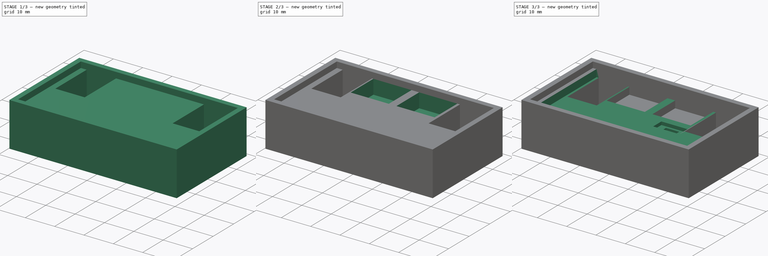
[diagram: build sequence overview — one tinted view per stage of 3, left to right]
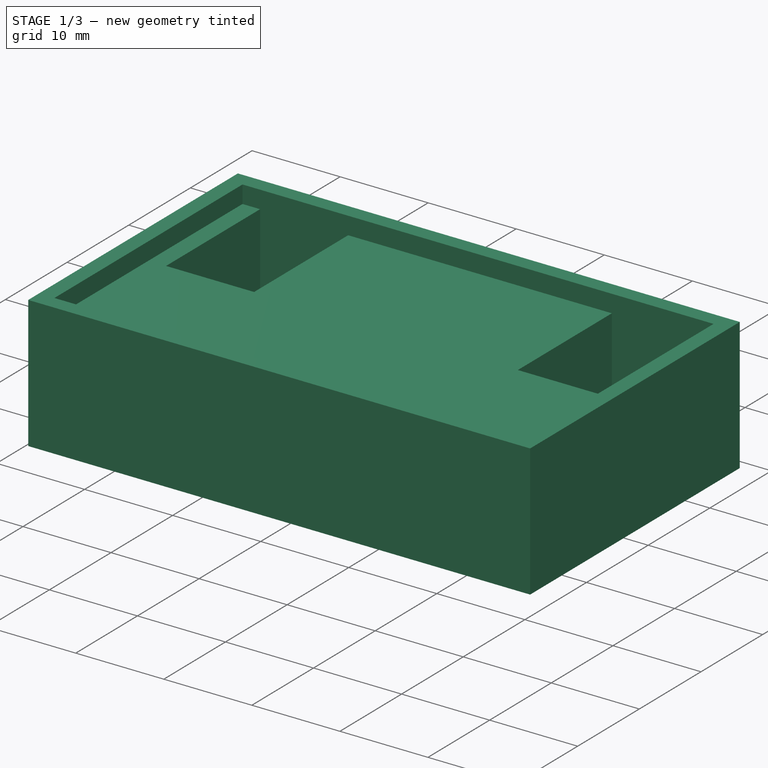
[diagram: stage 1 of 3 — iso view after this stage's code; geometry added in this stage tinted green]
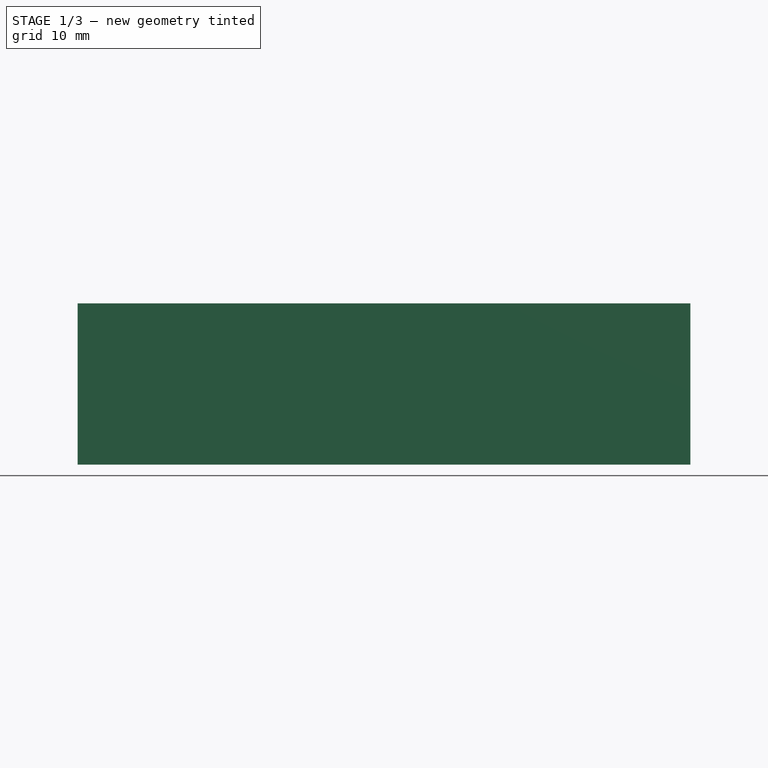
[diagram: stage 1 of 3 — front view after this stage's code; geometry added in this stage tinted green]
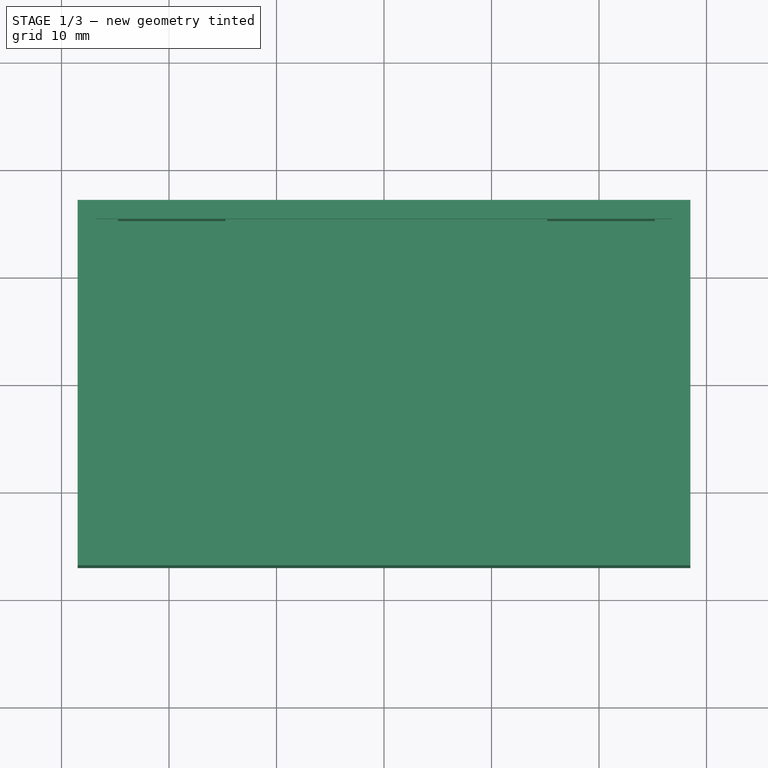
[diagram: stage 1 of 3 — top view after this stage's code; geometry added in this stage tinted green]
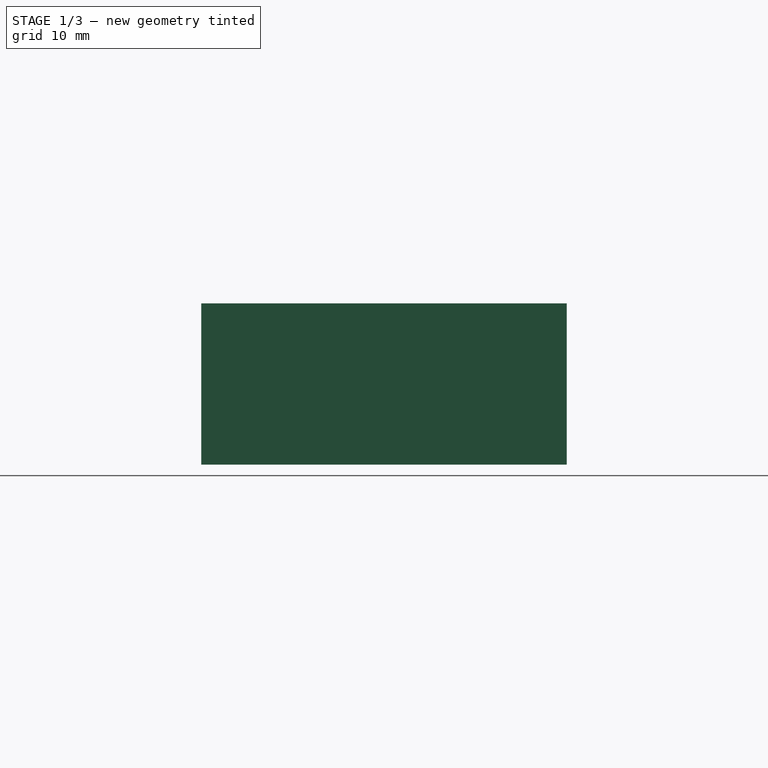
[diagram: stage 1 of 3 — right view after this stage's code; geometry added in this stage tinted green]
FCSTD DOCUMENT  (FreeCAD 1.0R39109 (Git))
Label: solderJig
License: All rights reserved
LicenseURL: https://en.wikipedia.org/wiki/All_rights_reserved
objects: Measure::MeasurePython×9, Sketcher::SketchObject×8, PartDesign::Pocket×7, PartDesign::Pad×1, App::DocumentObjectGroup×1, PartDesign::Body×1
note: 41 computed .brp shape members not serialized (recipe doc carries the construction recipe); baked Part::Feature solids carry a one-line shape summary decoded from their .brp

FEATURE [Sketcher::SketchObject] Sketch
  ArcFitTolerance = 1e-06
  AttachmentSupport = -> [XY_Plane]
  FullyConstrained = true
  MakeInternals = false
  MapMode = 5
  sketch-geometry (4):
    g0: LineSegment StartX=-28.5 StartY=17 StartZ=0 EndX=-28.5 EndY=-17 EndZ=0
    g1: LineSegment StartX=-28.5 StartY=-17 StartZ=0 EndX=28.5 EndY=-17 EndZ=0
    g2: LineSegment StartX=28.5 StartY=-17 StartZ=0 EndX=28.5 EndY=17 EndZ=0
    g3: LineSegment StartX=28.5 StartY=17 StartZ=0 EndX=-28.5 EndY=17 EndZ=0
  constraints (12):
    c: Coincident(g0,g1)
    c: Coincident(g1,g2)
    c: Coincident(g2,g3)
    c: Coincident(g3,g0)
    c: Vertical(g0)
    c: Vertical(g2)
    c: Horizontal(g1)
    c: Horizontal(g3)
    c: DistanceX(g3,g3) = 57
    c: DistanceY(g0,g0) = 34
    c: Distance(g-1,g3) = 17
    c: Distance(g0,g-2) = 28.5
FEATURE [PartDesign::Pad] Pad
  Direction = (0,0,1)
  Length = 15
  Length2 = 10
  Profile = -> Sketch
  ReferenceAxis = -> Sketch [N_Axis]
  Refine = true
  Suppressed = false
  Type = 0
FEATURE [Sketcher::SketchObject] Sketch001
  ArcFitTolerance = 1e-06
  AttachmentSupport = -> [Pad]
  FullyConstrained = true
  MakeInternals = false
  MapMode = 5
  Placement = pos=(0,0,15) rot=(0,0,1;0rad)
  sketch-geometry (4):
    g0: LineSegment StartX=-26.75 StartY=15.25 StartZ=0 EndX=-26.75 EndY=-15.25 EndZ=0
    g1: LineSegment StartX=-26.75 StartY=-15.25 StartZ=0 EndX=26.75 EndY=-15.25 EndZ=0
    g2: LineSegment StartX=26.75 StartY=-15.25 StartZ=0 EndX=26.75 EndY=15.25 EndZ=0
    g3: LineSegment StartX=26.75 StartY=15.25 StartZ=0 EndX=-26.75 EndY=15.25 EndZ=0
  constraints (12):
    c: Coincident(g0,g1)
    c: Coincident(g1,g2)
    c: Coincident(g2,g3)
    c: Coincident(g3,g0)
    c: Vertical(g0)
    c: Vertical(g2)
    c: Horizontal(g1)
    c: Horizontal(g3)
    c: DistanceX(g3,g3) = 53.5
    c: DistanceY(g0,g0) = 30.5
    c: Distance(g-1,g3) = 15.25
    c: Distance(g-2,g0) = 26.75
FEATURE [PartDesign::Pocket] Pocket
  BaseFeature = -> Pad
  Direction = (0,0,-1)
  Length = 2
  Length2 = 5
  Profile = -> Sketch001
  ReferenceAxis = -> Sketch001 [N_Axis]
  Refine = true
  Suppressed = false
  Type = 0
FEATURE [Sketcher::SketchObject] Sketch002
  ArcFitTolerance = 1e-06
  AttachmentSupport = -> [Pocket]
  FullyConstrained = true
  MakeInternals = false
  MapMode = 5
  Placement = pos=(0,0,13) rot=(0,0,1;0rad)
  sketch-geometry (8):
    g0: LineSegment StartX=-24.75 StartY=15.25 StartZ=0 EndX=-24.75 EndY=1.8e-15 EndZ=0
    g1: LineSegment StartX=-24.75 StartY=1.8e-15 StartZ=0 EndX=-14.75 EndY=1.8e-15 EndZ=0
    g2: LineSegment StartX=-14.75 StartY=1.8e-15 StartZ=0 EndX=-14.75 EndY=15.25 EndZ=0
    g3: LineSegment StartX=-14.75 StartY=15.25 StartZ=0 EndX=-24.75 EndY=15.25 EndZ=0
    g4: LineSegment StartX=15.2 StartY=15.25 StartZ=0 EndX=15.2 EndY=1.8e-15 EndZ=0
    g5: LineSegment StartX=15.2 StartY=1.8e-15 StartZ=0 EndX=25.2 EndY=1.8e-15 EndZ=0
    g6: LineSegment StartX=25.2 StartY=1.8e-15 StartZ=0 EndX=25.2 EndY=15.25 EndZ=0
    g7: LineSegment StartX=25.2 StartY=15.25 StartZ=0 EndX=15.2 EndY=15.25 EndZ=0
  constraints (24):
    c: Coincident(g0,g1)
    c: Coincident(g1,g2)
    c: Coincident(g2,g3)
    c: Coincident(g3,g0)
    c: Vertical(g0)
    c: Vertical(g2)
    c: Horizontal(g1)
    c: Horizontal(g3)
    c: DistanceX(g3,g3) = 10
    c: DistanceY(g2,g2) = 15.25
    c: Distance(g-1,g3) = 15.25
    c: Coincident(g4,g5)
    c: Coincident(g5,g6)
    c: Coincident(g6,g7)
    c: Coincident(g7,g4)
    c: Vertical(g4)
    c: Vertical(g6)
    c: Horizontal(g5)
    c: Horizontal(g7)
    c: DistanceY(g4,g4) = 15.25
    c: DistanceX(g5,g5) = 10
    c: Distance(g-1,g7) = 15.25
    c: Distance(g-2,g2) = 14.75
    c: Distance(g-2,g4) = 15.2
FEATURE [PartDesign::Pocket] Pocket001
  BaseFeature = -> Pocket
  Direction = (0,0,-1)
  Length = 10.7
  Length2 = 5
  Profile = -> Sketch002
  ReferenceAxis = -> Sketch002 [N_Axis]
  Refine = true
  Suppressed = false
  Type = 0
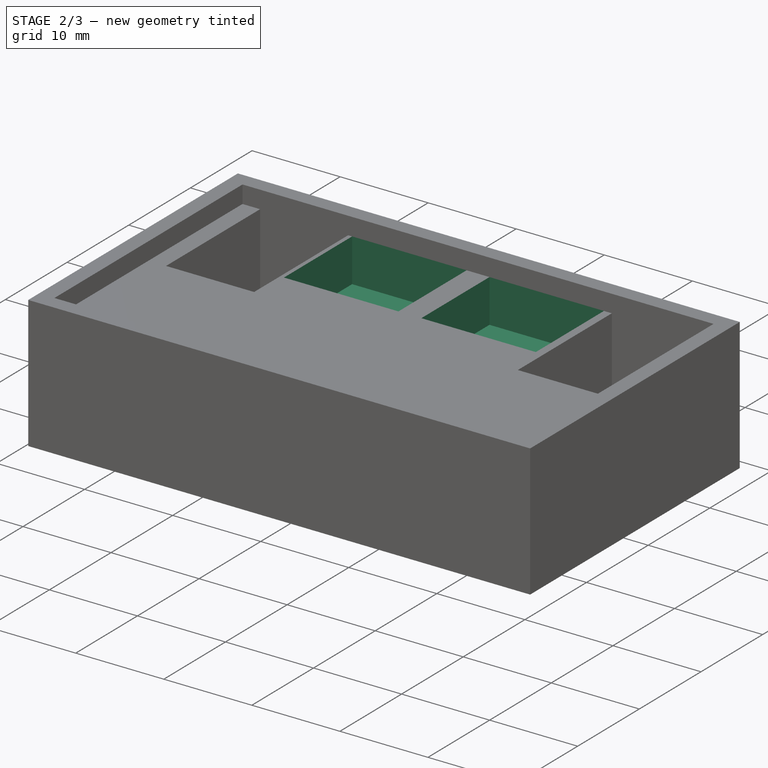
[diagram: stage 2 of 3 — iso view after this stage's code; geometry added in this stage tinted green]
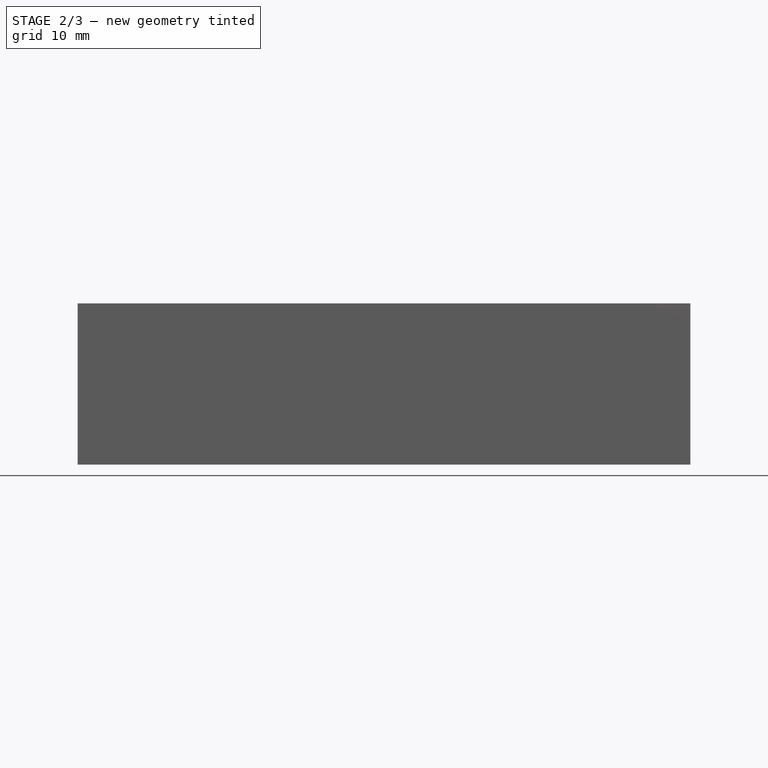
[diagram: stage 2 of 3 — front view after this stage's code; geometry added in this stage tinted green]
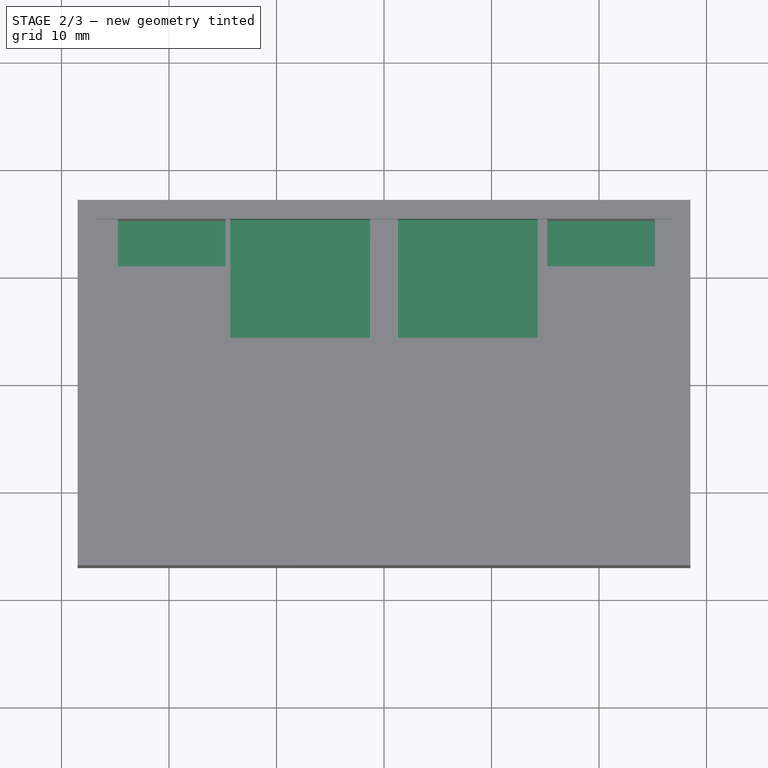
[diagram: stage 2 of 3 — top view after this stage's code; geometry added in this stage tinted green]
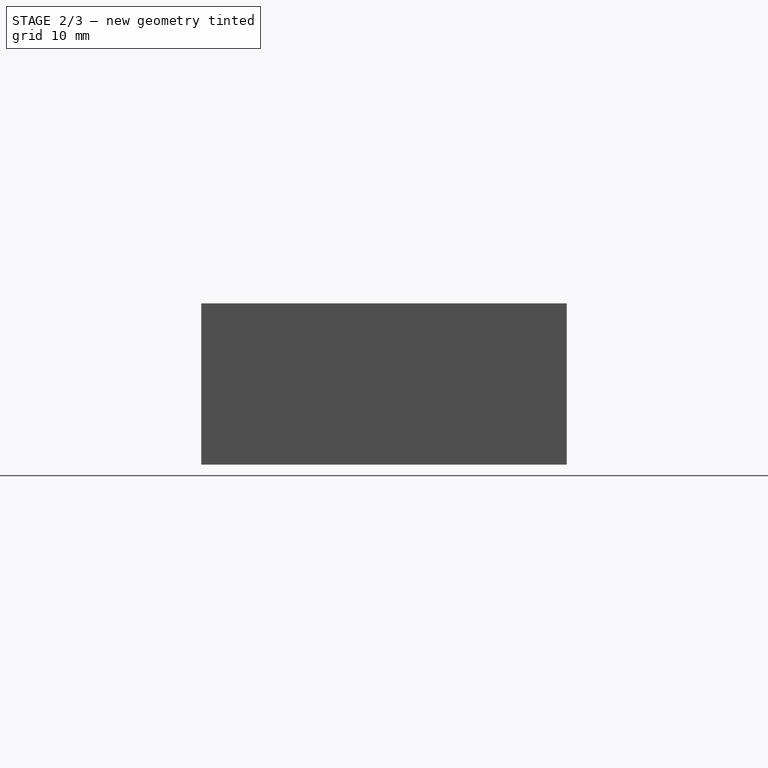
[diagram: stage 2 of 3 — right view after this stage's code; geometry added in this stage tinted green]
FEATURE [Sketcher::SketchObject] Sketch003
  ArcFitTolerance = 1e-06
  AttachmentSupport = -> [Pocket001]
  FullyConstrained = true
  MakeInternals = false
  MapMode = 5
  Placement = pos=(0,0,2.3) rot=(0,0,1;0rad)
  sketch-geometry (8):
    g0: LineSegment StartX=-24.75 StartY=11.05 StartZ=0 EndX=-14.75 EndY=11.05 EndZ=0
    g1: LineSegment StartX=-14.75 StartY=11.05 StartZ=0 EndX=-14.75 EndY=15.25 EndZ=0
    g2: LineSegment StartX=-14.75 StartY=15.25 StartZ=0 EndX=-24.75 EndY=15.25 EndZ=0
    g3: LineSegment StartX=-24.75 StartY=15.25 StartZ=0 EndX=-24.75 EndY=11.05 EndZ=0
    g4: LineSegment StartX=15.2 StartY=15.25 StartZ=0 EndX=15.2 EndY=11.05 EndZ=0
    g5: LineSegment StartX=15.2 StartY=11.05 StartZ=0 EndX=25.2 EndY=11.05 EndZ=0
    g6: LineSegment StartX=25.2 StartY=11.05 StartZ=0 EndX=25.2 EndY=15.25 EndZ=0
    g7: LineSegment StartX=25.2 StartY=15.25 StartZ=0 EndX=15.2 EndY=15.25 EndZ=0
  constraints (24):
    c: Coincident(g0,g1)
    c: Coincident(g1,g2)
    c: Coincident(g2,g3)
    c: Coincident(g3,g0)
    c: Horizontal(g0)
    c: Horizontal(g2)
    c: Vertical(g1)
    c: Vertical(g3)
    c: DistanceX(g0,g0) = 10
    c: DistanceY(g1,g1) = 4.2
    c: Distance(g-1,g0) = 11.05
    c: Coincident(g4,g5)
    c: Coincident(g5,g6)
    c: Coincident(g6,g7)
    c: Coincident(g7,g4)
    c: Vertical(g4)
    c: Vertical(g6)
    c: Horizontal(g5)
    c: Horizontal(g7)
    c: DistanceX(g5,g5) = 10
    c: Distance(g5,g7) = 4.2
    c: Distance(g-1,g5) = 11.05
    c: Distance(g-2,g1) = 14.75
    c: Distance(g-2,g4) = 15.2
FEATURE [PartDesign::Pocket] Pocket002
  BaseFeature = -> Pocket001
  Direction = (0,0,-1)
  Length = 0.45
  Length2 = 5
  Profile = -> Sketch003
  ReferenceAxis = -> Sketch003 [N_Axis]
  Refine = true
  Suppressed = false
  Type = 0
FEATURE [Sketcher::SketchObject] Sketch004
  ArcFitTolerance = 1e-06
  AttachmentSupport = -> [Pocket002]
  FullyConstrained = true
  MakeInternals = false
  MapMode = 5
  Placement = pos=(0,0,13) rot=(0,0,1;0rad)
  sketch-geometry (8):
    g0: LineSegment StartX=-14.3 StartY=15.25 StartZ=0 EndX=-14.3 EndY=4.2 EndZ=0
    g1: LineSegment StartX=-14.3 StartY=4.2 StartZ=0 EndX=-1.3 EndY=4.2 EndZ=0
    g2: LineSegment StartX=-1.3 StartY=4.2 StartZ=0 EndX=-1.3 EndY=15.25 EndZ=0
    g3: LineSegment StartX=-1.3 StartY=15.25 StartZ=0 EndX=-14.3 EndY=15.25 EndZ=0
    g4: LineSegment StartX=1.3 StartY=15.25 StartZ=0 EndX=1.3 EndY=4.2 EndZ=0
    g5: LineSegment StartX=1.3 StartY=4.2 StartZ=0 EndX=14.3 EndY=4.2 EndZ=0
    g6: LineSegment StartX=14.3 StartY=4.2 StartZ=0 EndX=14.3 EndY=15.25 EndZ=0
    g7: LineSegment StartX=14.3 StartY=15.25 StartZ=0 EndX=1.3 EndY=15.25 EndZ=0
  constraints (24):
    c: Coincident(g0,g1)
    c: Coincident(g1,g2)
    c: Coincident(g2,g3)
    c: Coincident(g3,g0)
    c: Vertical(g0)
    c: Vertical(g2)
    c: Horizontal(g1)
    c: Horizontal(g3)
    c: DistanceX(g3,g3) = 13
    c: Distance(g-1,g1) = 4.2
    c: Distance(g-1,g3) = 15.25
    c: Distance(g-1,g2) = 1.3
    c: Coincident(g4,g5)
    c: Coincident(g5,g6)
    c: Coincident(g6,g7)
    c: Coincident(g7,g4)
    c: Vertical(g4)
    c: Vertical(g6)
    c: Horizontal(g5)
    c: Horizontal(g7)
    c: DistanceX(g5,g5) = 13
    c: Distance(g-1,g5) = 4.2
    c: Distance(g-1,g7) = 15.25
    c: Distance(g-2,g4) = 1.3
FEATURE [PartDesign::Pocket] Pocket003
  BaseFeature = -> Pocket002
  Direction = (0,0,-1)
  Length = 4.9
  Length2 = 5
  Profile = -> Sketch004
  ReferenceAxis = -> Sketch004 [N_Axis]
  Refine = true
  Suppressed = false
  Type = 0
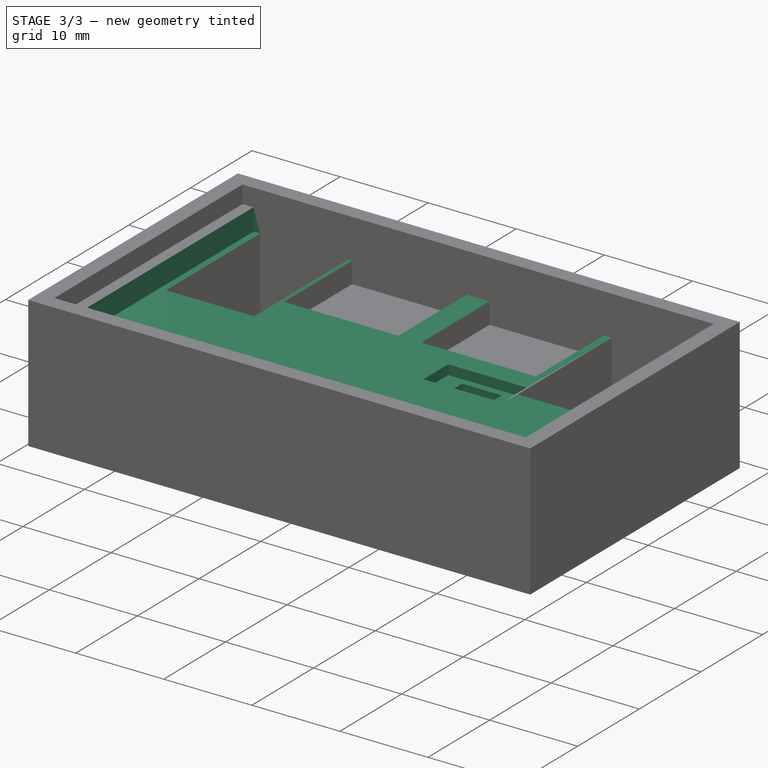
[diagram: stage 3 of 3 — iso view after this stage's code; geometry added in this stage tinted green]
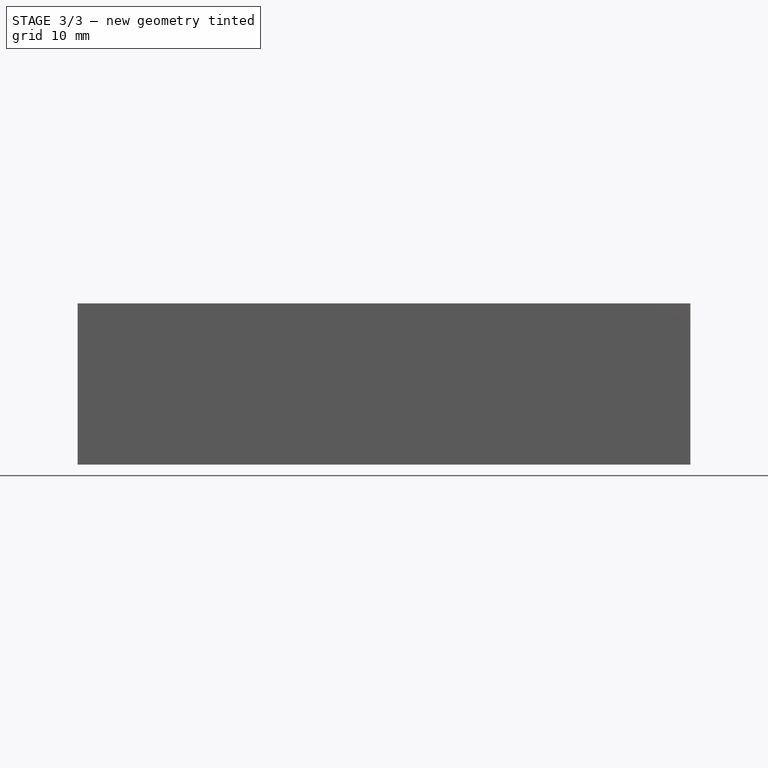
[diagram: stage 3 of 3 — front view after this stage's code; geometry added in this stage tinted green]
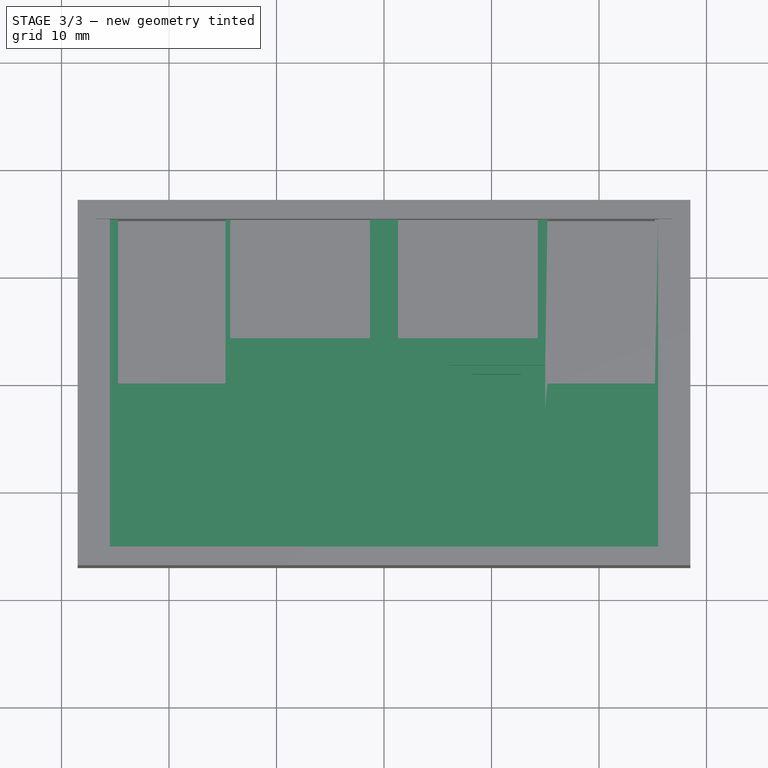
[diagram: stage 3 of 3 — top view after this stage's code; geometry added in this stage tinted green]
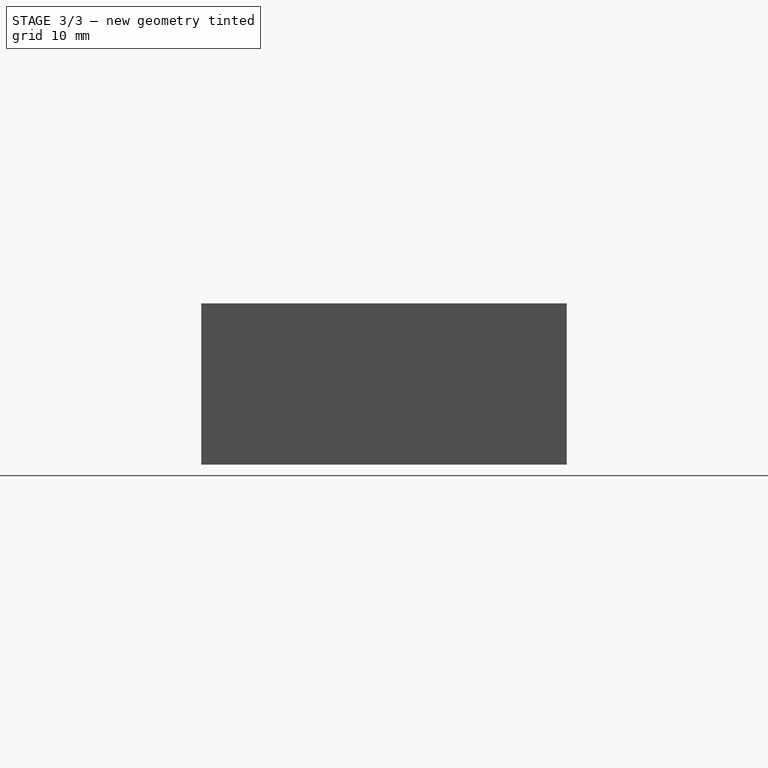
[diagram: stage 3 of 3 — right view after this stage's code; geometry added in this stage tinted green]
FEATURE [Sketcher::SketchObject] Sketch005
  ArcFitTolerance = 1e-06
  AttachmentSupport = -> [Pocket003]
  FullyConstrained = true
  MakeInternals = false
  MapMode = 5
  Placement = pos=(0,0,13) rot=(0,0,1;0rad)
  sketch-geometry (4):
    g0: LineSegment StartX=6.1 StartY=1.7 StartZ=0 EndX=6.1 EndY=-2.3 EndZ=0
    g1: LineSegment StartX=6.1 StartY=-2.3 StartZ=0 EndX=15 EndY=-2.3 EndZ=0
    g2: LineSegment StartX=15 StartY=-2.3 StartZ=0 EndX=15 EndY=1.7 EndZ=0
    g3: LineSegment StartX=15 StartY=1.7 StartZ=0 EndX=6.1 EndY=1.7 EndZ=0
  constraints (12):
    c: Coincident(g0,g1)
    c: Coincident(g1,g2)
    c: Coincident(g2,g3)
    c: Coincident(g3,g0)
    c: Vertical(g0)
    c: Vertical(g2)
    c: Horizontal(g1)
    c: Horizontal(g3)
    c: DistanceY(g2,g2) = 4
    c: DistanceX(g3,g3) = 8.9
    c: Distance(g-1,g1) = 2.3
    c: Distance(g-2,g0) = 6.1
FEATURE [PartDesign::Pocket] Pocket004
  BaseFeature = -> Pocket003
  Direction = (0,0,-1)
  Length = 3.6
  Length2 = 5
  Profile = -> Sketch005
  ReferenceAxis = -> Sketch005 [N_Axis]
  Refine = true
  Suppressed = false
  Type = 0
FEATURE [Sketcher::SketchObject] Sketch006
  ArcFitTolerance = 1e-06
  AttachmentSupport = -> [Pocket004]
  FullyConstrained = true
  MakeInternals = false
  MapMode = 5
  Placement = pos=(0,0,9.4) rot=(0,0,1;0rad)
  sketch-geometry (4):
    g0: LineSegment StartX=8.25 StartY=0.9 StartZ=0 EndX=8.25 EndY=-1.5 EndZ=0
    g1: LineSegment StartX=8.25 StartY=-1.5 StartZ=0 EndX=12.75 EndY=-1.5 EndZ=0
    g2: LineSegment StartX=12.75 StartY=-1.5 StartZ=0 EndX=12.75 EndY=0.9 EndZ=0
    g3: LineSegment StartX=12.75 StartY=0.9 StartZ=0 EndX=8.25 EndY=0.9 EndZ=0
  constraints (12):
    c: Coincident(g0,g1)
    c: Coincident(g1,g2)
    c: Coincident(g2,g3)
    c: Coincident(g3,g0)
    c: Vertical(g0)
    c: Vertical(g2)
    c: Horizontal(g1)
    c: Horizontal(g3)
    c: DistanceY(g0,g0) = 2.4
    c: DistanceX(g3,g3) = 4.5
    c: Distance(g-1,g1) = 1.5
    c: Distance(g-2,g0) = 8.25
FEATURE [PartDesign::Pocket] Pocket005
  BaseFeature = -> Pocket004
  Direction = (0,0,-1)
  Length = 2.1
  Length2 = 5
  Profile = -> Sketch006
  ReferenceAxis = -> Sketch006 [N_Axis]
  Refine = true
  Suppressed = false
  Type = 0
FEATURE [App::DocumentObjectGroup] Group
FEATURE [Sketcher::SketchObject] Sketch007
  ArcFitTolerance = 1e-06
  AttachmentSupport = -> [Pocket005]
  FullyConstrained = true
  MakeInternals = false
  MapMode = 5
  Placement = pos=(0,0,13) rot=(0,0,1;0rad)
  sketch-geometry (4):
    g0: LineSegment StartX=-25.5 StartY=15.25 StartZ=0 EndX=-25.5 EndY=-15.25 EndZ=0
    g1: LineSegment StartX=-25.5 StartY=-15.25 StartZ=0 EndX=25.5 EndY=-15.25 EndZ=0
    g2: LineSegment StartX=25.5 StartY=-15.25 StartZ=0 EndX=25.5 EndY=15.25 EndZ=0
    g3: LineSegment StartX=25.5 StartY=15.25 StartZ=0 EndX=-25.5 EndY=15.25 EndZ=0
  constraints (12):
    c: Coincident(g0,g1)
    c: Coincident(g1,g2)
    c: Coincident(g2,g3)
    c: Coincident(g3,g0)
    c: Vertical(g0)
    c: Vertical(g2)
    c: Horizontal(g1)
    c: Horizontal(g3)
    c: DistanceX(g3,g3) = 51
    c: DistanceY(g0,g0) = 30.5
    c: Distance(g-1,g3) = 15.25
    c: Distance(g-2,g0) = 25.5
FEATURE [PartDesign::Pocket] Pocket006
  BaseFeature = -> Pocket005
  Direction = (0,0,-1)
  Length = 2.5
  Length2 = 5
  Profile = -> Sketch007
  ReferenceAxis = -> Sketch007 [N_Axis]
  Refine = true
  Suppressed = false
  Type = 0
FEATURE [PartDesign::Body] Body
  AllowCompound = false
  Group = -> [Sketch,Pad,Sketch001,Pocket,Sketch002,Pocket001,Sketch003,Pocket002,Sketch004,Pocket003,Sketch005,Pocket004,Sketch006,Pocket005,Sketch007,Pocket006]
  Origin = -> Origin
  Tip = -> Pocket006
FEATURE [Measure::MeasurePython] Center_of_Mass  label="Center_of_Mass: "  # WARN: FeaturePython — macro-defined, semantics opaque (R4)
  Element = -> Body [Sketch002.]
  Placement = pos=(-20,7.45,13) rot=(0,0,1;0rad)
  Result = (-20,7.45,13)
FEATURE [Measure::MeasurePython] Center_of_Mass001  label="Center_of_Mass001: "  # WARN: FeaturePython — macro-defined, semantics opaque (R4)
  Element = -> Body [Pocket002.]
  Placement = pos=(-0.0330054,-1.1278,6.54479) rot=(0,0,1;0rad)
  Result = (-0.0330054,-1.1278,6.54479)
FEATURE [Measure::MeasurePython] Center_of_Mass002  label="Center_of_Mass002: COM
X: -8.90 mm
Y: 9.85 mm
Z: 13.00 mm"  # WARN: FeaturePython — macro-defined, semantics opaque (R4)
  Element = -> Body [Sketch004.]
  Placement = pos=(-9,9.725,13) rot=(0,0,1;0rad)
  Result = (-9,9.725,13)
FEATURE [Measure::MeasurePython] Center_of_Mass003  label="Center_of_Mass003: COM
X: -8.90 mm
Y: 9.72 mm
Z: 13.00 mm"  # WARN: FeaturePython — macro-defined, semantics opaque (R4)
  Element = -> Body [Sketch004.]
  Placement = pos=(-9,9.725,13) rot=(0,0,1;0rad)
  Result = (-9,9.725,13)
FEATURE [Measure::MeasurePython] Center_of_Mass004  label="Center_of_Mass004: COM
X: -9.00 mm
Y: 9.72 mm
Z: 13.00 mm"  # WARN: FeaturePython — macro-defined, semantics opaque (R4)
  Element = -> Body [Sketch004.]
  Placement = pos=(-9,9.725,13) rot=(0,0,1;0rad)
  Result = (-9,9.725,13)
FEATURE [Measure::MeasurePython] Center_of_Mass005  label="Center_of_Mass005: COM
X: -10.75 mm
Y: -4.55 mm
Z: 13.00 mm"  # WARN: FeaturePython — macro-defined, semantics opaque (R4)
  Element = -> Body [Sketch005.]
  Placement = pos=(10.55,-0.3,13) rot=(0,0,1;0rad)
  Result = (10.55,-0.3,13)
FEATURE [Measure::MeasurePython] Center_of_Mass006  label="Center_of_Mass006: COM
X: -10.25 mm
Y: -0.55 mm
Z: 13.00 mm"  # WARN: FeaturePython — macro-defined, semantics opaque (R4)
  Element = -> Body [Sketch005.]
  Placement = pos=(10.55,-0.3,13) rot=(0,0,1;0rad)
  Result = (10.55,-0.3,13)
FEATURE [Measure::MeasurePython] Center_of_Mass007  label="Center_of_Mass007: COM
X: -12.44 mm
Y: -0.71 mm
Z: 9.40 mm"  # WARN: FeaturePython — macro-defined, semantics opaque (R4)
  Element = -> Body [Sketch006.]
  Placement = pos=(10.5,-0.3,9.4) rot=(0,0,1;0rad)
  Result = (10.5,-0.3,9.4)
FEATURE [Measure::MeasurePython] Center_of_Mass008  label="Center_of_Mass008: COM
X: -0.00 mm
Y: 0.00 mm
Z: 15.00 mm"  # WARN: FeaturePython — macro-defined, semantics opaque (R4)
  Element = -> Body [Pocket.Sketch001.]
  Placement = pos=(-3.4e-15,0,15) rot=(0,0,1;0rad)
  Result = (-3.4e-15,0,15)
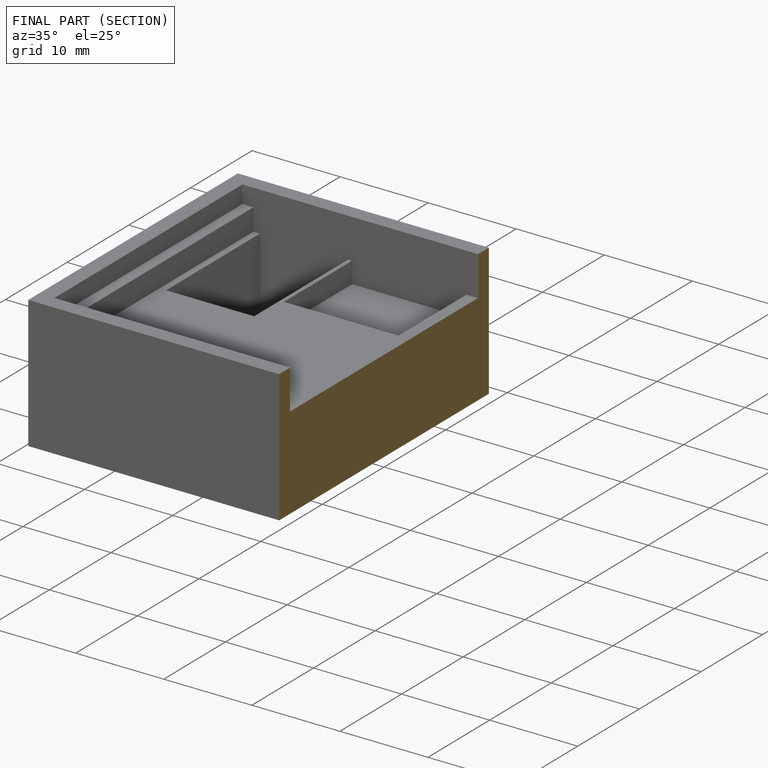
[diagram: finished part — half-section view (interior)]
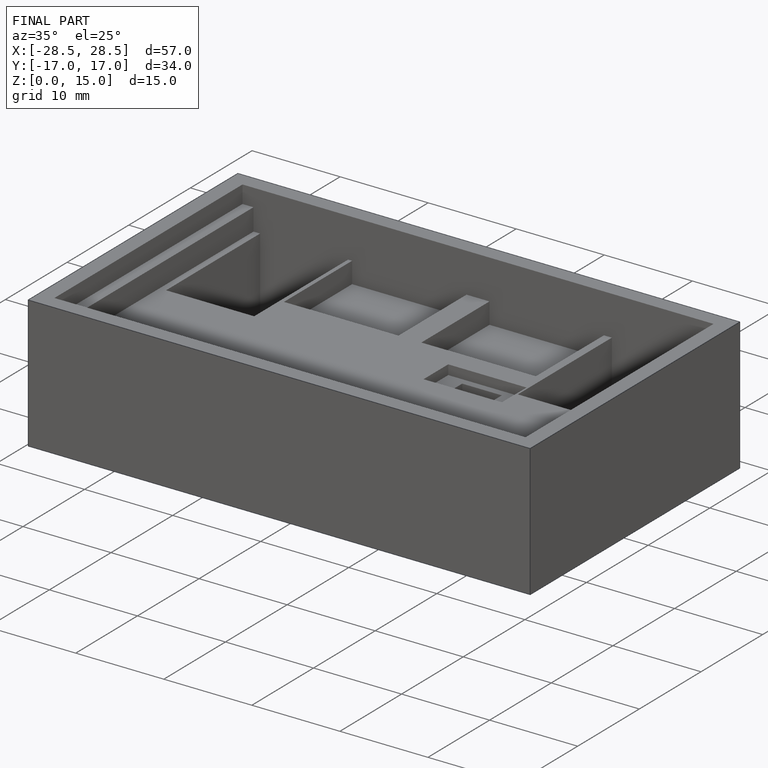
[diagram: finished part — iso view with bounding-box wireframe]
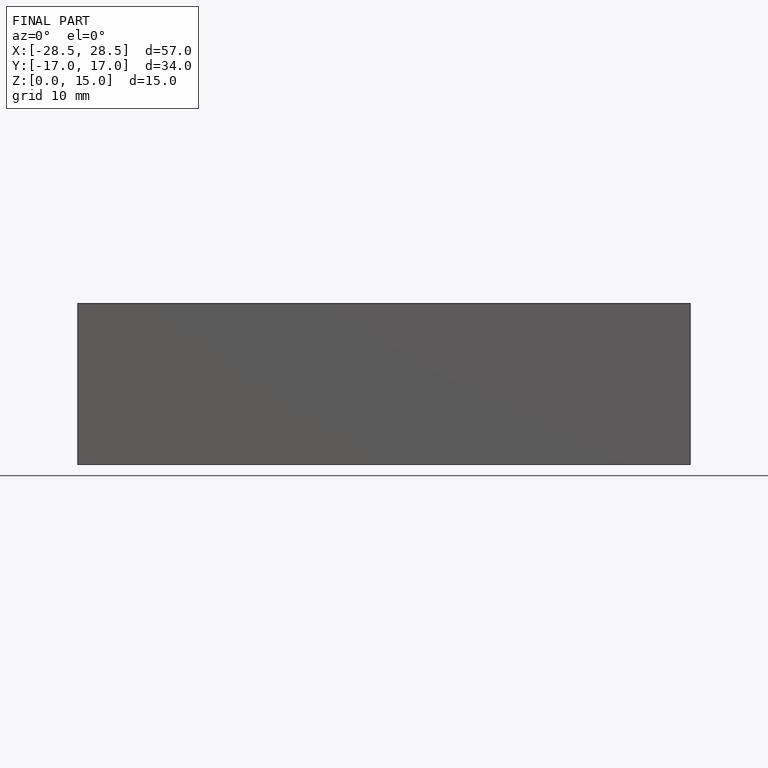
[diagram: finished part — front view with bounding-box wireframe]
